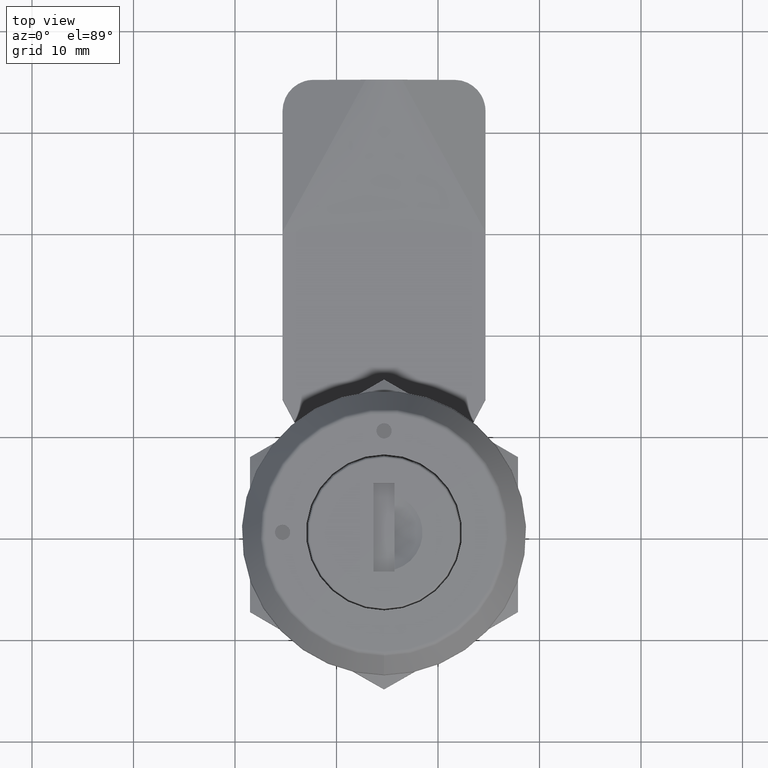
[diagram: clean part render]
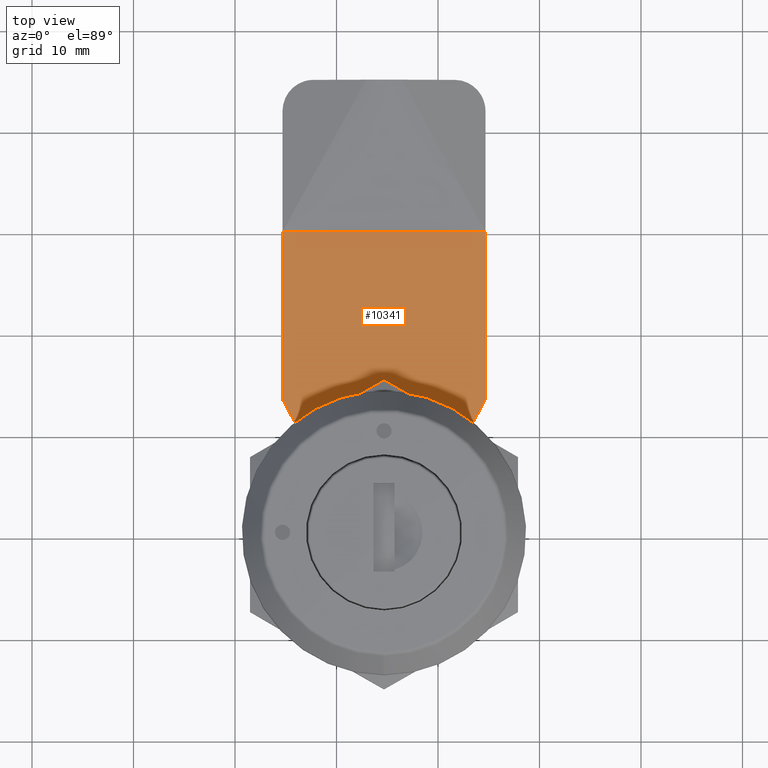
[diagram: same view with one face highlighted and labeled with its STEP entity id]
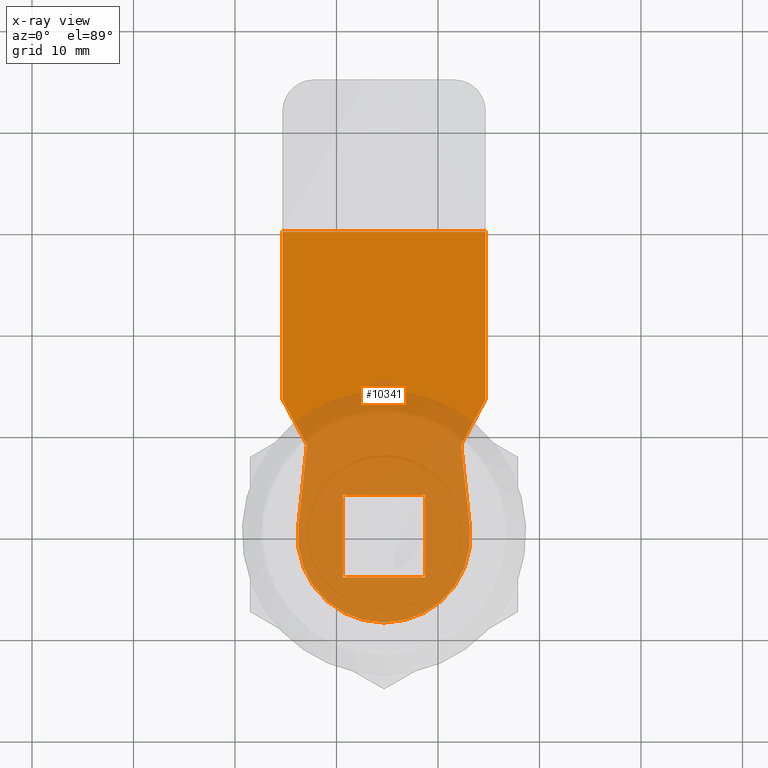
[diagram: x-ray of the same camera — body ghosted, the highlighted face saturated]
A machine part, top view. The second image highlights one B-rep face of the part: STEP entity #10341.
The next image is the same camera in x-ray: the body ghosted, the highlighted face saturated — about 44% of this face is hidden behind the body in this view.
In plain terms, the highlighted planar face has unit normal (-0, -0, 1).
Its self-contained STEP definition (entity closure, byte-faithful):
#470=PLANE('',#10949);
#955=LINE('',#40073,#1790);
#956=LINE('',#40077,#1791);
#960=LINE('',#40085,#1795);
#963=LINE('',#40091,#1798);
#966=LINE('',#40096,#1801);
#968=LINE('',#40101,#1803);
#972=LINE('',#40108,#1807);
#974=LINE('',#40112,#1809);
#977=LINE('',#40118,#1812);
#980=LINE('',#40124,#1815);
#984=LINE('',#40135,#1819);
#1790=VECTOR('',#12274,20.);
#1791=VECTOR('',#12277,8.1);
#1795=VECTOR('',#12283,8.1);
#1798=VECTOR('',#12288,8.1);
#1801=VECTOR('',#12293,8.1);
#1803=VECTOR('',#12297,5.1);
#1807=VECTOR('',#12303,16.5);
#1809=VECTOR('',#12307,16.5);
#1812=VECTOR('',#12312,5.1);
#1815=VECTOR('',#12317,8.15536633144091);
#1819=VECTOR('',#12329,8.15536633144091);
#2653=FACE_BOUND('',#3594,.T.);
#2964=FACE_OUTER_BOUND('',#3593,.T.);
#3593=EDGE_LOOP('',(#8236,#8237,#8238,#8239,#8240,#8241,#8242,#8243));
#3594=EDGE_LOOP('',(#8244,#8245,#8246,#8247));
#4025=CIRCLE('',#10945,8.5);
#4674=VERTEX_POINT('',#39922);
#4683=VERTEX_POINT('',#39999);
#4685=VERTEX_POINT('',#40075);
#4686=VERTEX_POINT('',#40076);
#4689=VERTEX_POINT('',#40084);
#4691=VERTEX_POINT('',#40090);
#4693=VERTEX_POINT('',#40099);
#4694=VERTEX_POINT('',#40100);
#4697=VERTEX_POINT('',#40111);
#4699=VERTEX_POINT('',#40117);
#4701=VERTEX_POINT('',#40123);
#4703=VERTEX_POINT('',#40129);
#5940=EDGE_CURVE('',#4683,#4674,#955,.T.);
#5941=EDGE_CURVE('',#4685,#4686,#956,.T.);
#5945=EDGE_CURVE('',#4686,#4689,#960,.T.);
#5948=EDGE_CURVE('',#4689,#4691,#963,.T.);
#5951=EDGE_CURVE('',#4691,#4685,#966,.T.);
#5953=EDGE_CURVE('',#4693,#4694,#968,.T.);
#5957=EDGE_CURVE('',#4694,#4683,#972,.T.);
#5959=EDGE_CURVE('',#4674,#4697,#974,.T.);
#5962=EDGE_CURVE('',#4697,#4699,#977,.T.);
#5965=EDGE_CURVE('',#4699,#4701,#980,.T.);
#5968=EDGE_CURVE('',#4701,#4703,#4025,.T.);
#5971=EDGE_CURVE('',#4703,#4693,#984,.T.);
#8236=ORIENTED_EDGE('',*,*,#5953,.F.);
#8237=ORIENTED_EDGE('',*,*,#5971,.F.);
#8238=ORIENTED_EDGE('',*,*,#5968,.F.);
#8239=ORIENTED_EDGE('',*,*,#5965,.F.);
#8240=ORIENTED_EDGE('',*,*,#5962,.F.);
#8241=ORIENTED_EDGE('',*,*,#5959,.F.);
#8242=ORIENTED_EDGE('',*,*,#5940,.F.);
#8243=ORIENTED_EDGE('',*,*,#5957,.F.);
#8244=ORIENTED_EDGE('',*,*,#5941,.T.);
#8245=ORIENTED_EDGE('',*,*,#5945,.T.);
#8246=ORIENTED_EDGE('',*,*,#5948,.T.);
#8247=ORIENTED_EDGE('',*,*,#5951,.T.);
#10341=ADVANCED_FACE('',(#2964,#2653),#470,.T.);
#10945=AXIS2_PLACEMENT_3D('',#40130,#12322,#12323);
#10949=AXIS2_PLACEMENT_3D('',#40138,#12333,#12334);
#12274=DIRECTION('',(1.,0.,0.));
#12277=DIRECTION('',(0.,-1.,0.));
#12283=DIRECTION('',(-1.,-1.37064570941377E-16,0.));
#12288=DIRECTION('',(0.,1.,0.));
#12293=DIRECTION('',(1.,0.,0.));
#12297=DIRECTION('',(-0.470588235294118,0.88235294117647,0.));
#12303=DIRECTION('',(0.,1.,0.));
#12307=DIRECTION('',(0.,-1.,0.));
#12312=DIRECTION('',(-0.470588235294118,-0.88235294117647,0.));
#12317=DIRECTION('',(0.104635456046765,-0.994510644155147,0.));
#12322=DIRECTION('center_axis',(0.,0.,-1.));
#12323=DIRECTION('ref_axis',(-0.994510644155147,0.104635456046764,0.));
#12329=DIRECTION('',(0.104635456046765,0.994510644155147,0.));
#12333=DIRECTION('center_axis',(0.,0.,1.));
#12334=DIRECTION('ref_axis',(1.,0.,0.));
#39922=CARTESIAN_POINT('',(10.,30.,3.));
#39999=CARTESIAN_POINT('',(-10.,30.,3.));
#40073=CARTESIAN_POINT('',(10.,30.,3.));
#40075=CARTESIAN_POINT('',(4.05,4.05,3.));
#40076=CARTESIAN_POINT('',(4.05,-4.05,3.));
#40077=CARTESIAN_POINT('',(4.05,8.44205728037755,3.));
#40084=CARTESIAN_POINT('',(-4.05,-4.05,3.));
#40085=CARTESIAN_POINT('',(2.025,-4.05,3.));
#40090=CARTESIAN_POINT('',(-4.05,4.05,3.));
#40091=CARTESIAN_POINT('',(-4.05,4.39205728037755,3.));
#40096=CARTESIAN_POINT('',(-2.025,4.05,3.));
#40099=CARTESIAN_POINT('',(-7.6,9.,3.));
#40100=CARTESIAN_POINT('',(-10.,13.5,3.));
#40101=CARTESIAN_POINT('',(-10.,13.5,3.));
#40108=CARTESIAN_POINT('',(-10.,30.,3.));
#40111=CARTESIAN_POINT('',(10.,13.5,3.));
#40112=CARTESIAN_POINT('',(10.,13.5,3.));
#40117=CARTESIAN_POINT('',(7.6,9.,3.));
#40118=CARTESIAN_POINT('',(7.6,9.,3.));
#40123=CARTESIAN_POINT('',(8.45334047531875,0.889401376397498,3.));
#40124=CARTESIAN_POINT('',(8.45334047531875,0.889401376397498,3.));
#40129=CARTESIAN_POINT('',(-8.45334047531875,0.889401376397498,3.));
#40130=CARTESIAN_POINT('Origin',(0.,0.,3.));
#40135=CARTESIAN_POINT('',(-7.6,9.,3.));
#40138=CARTESIAN_POINT('Origin',(0.,12.8341145607551,3.));